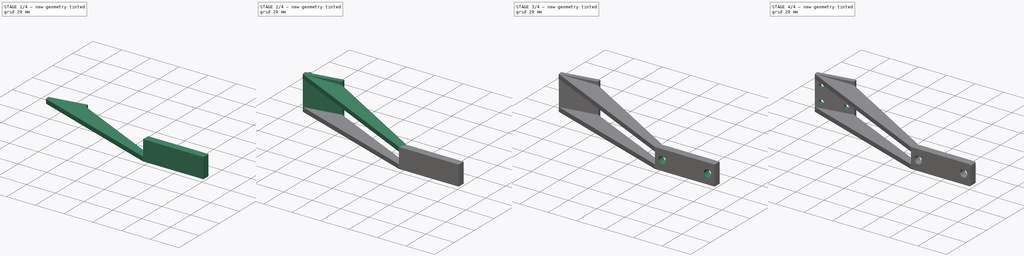
[diagram: build sequence overview — one tinted view per stage of 4, left to right]
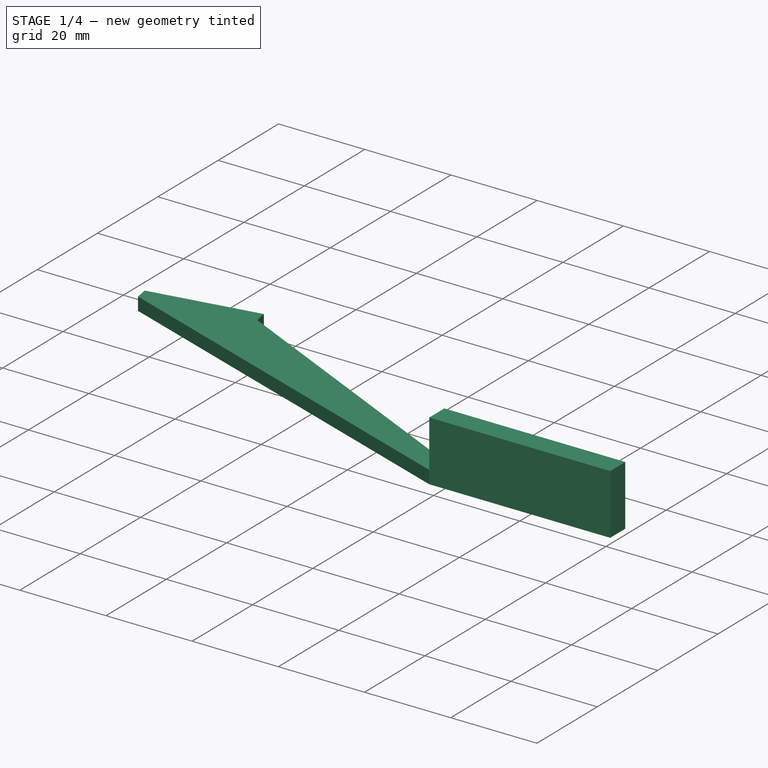
[diagram: stage 1 of 4 — iso view after this stage's code; geometry added in this stage tinted green]
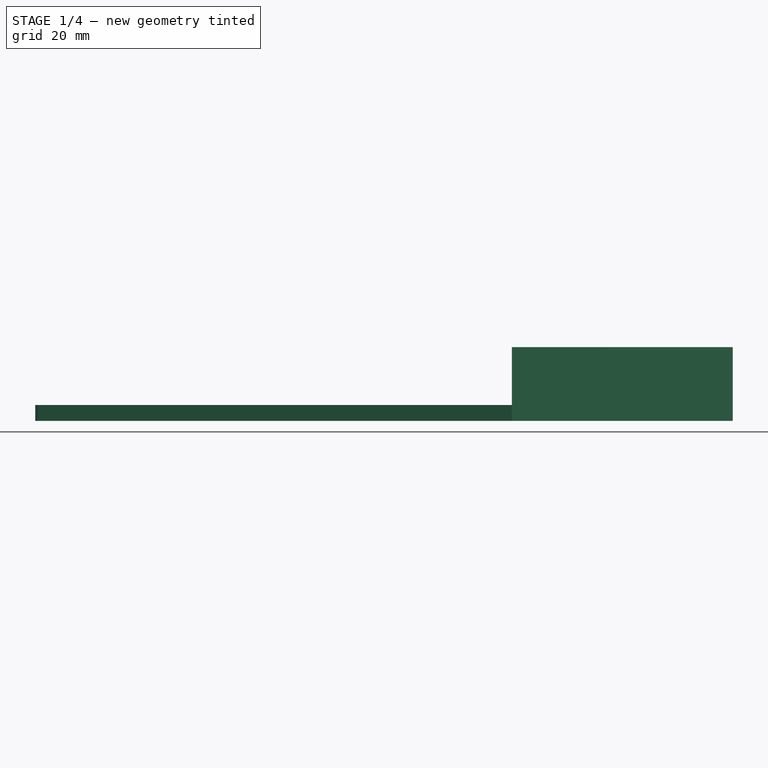
[diagram: stage 1 of 4 — front view after this stage's code; geometry added in this stage tinted green]
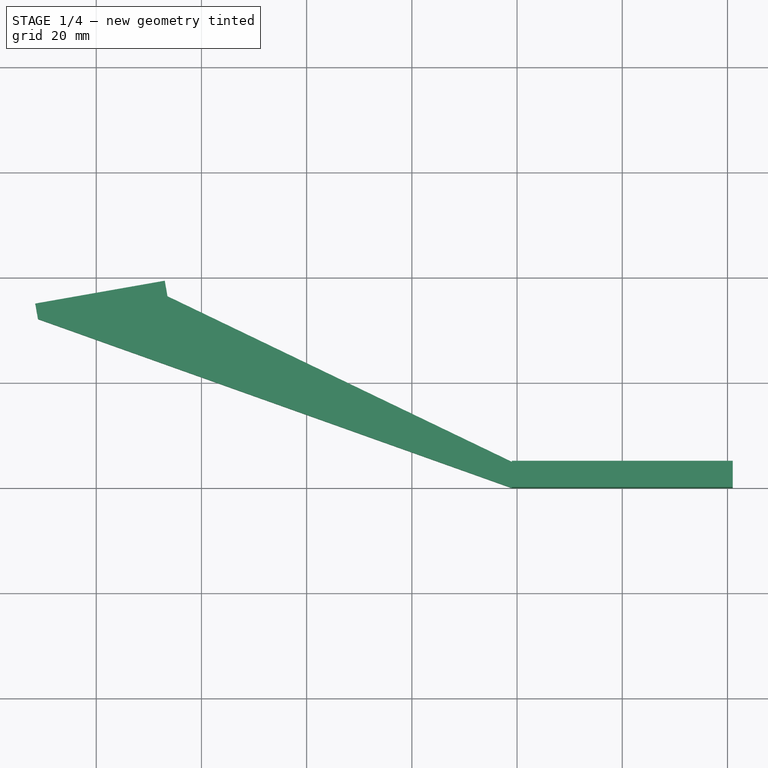
[diagram: stage 1 of 4 — top view after this stage's code; geometry added in this stage tinted green]
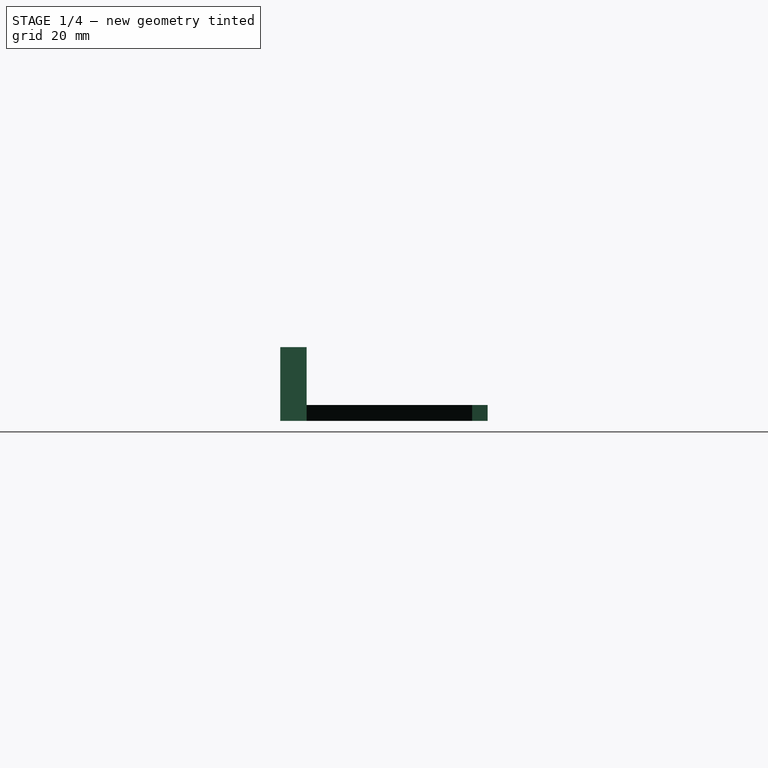
[diagram: stage 1 of 4 — right view after this stage's code; geometry added in this stage tinted green]
FCSTD DOCUMENT  (FreeCAD 0.19R24276 (Git))
Label: Lips_arm_left
License: All rights reserved
LicenseURL: http://en.wikipedia.org/wiki/All_rights_reserved
objects: Sketcher::SketchObject×11, PartDesign::Pocket×6, PartDesign::Pad×5, PartDesign::Fillet×1, PartDesign::Body×1
note: 36 computed .brp shape members not serialized (recipe doc carries the construction recipe); baked Part::Feature solids carry a one-line shape summary decoded from their .brp

FEATURE [Sketcher::SketchObject] Sketch
  FullyConstrained = false
  MapMode = 5
  Support = -> [XY_Plane]
  sketch-geometry (35):
    g0: Circle CenterX=0 CenterY=-54 CenterZ=0 NormalX=0 NormalY=0 NormalZ=1 AngleXU=0 Radius=4
    g1: LineSegment StartX=-57.9645 StartY=-38.8963 StartZ=0 EndX=-1.26483 EndY=-57.7948 EndZ=0
    g2: LineSegment StartX=-45 StartY=0 StartZ=0 EndX=-57.9645 EndY=-38.8963 EndZ=0
    g3: LineSegment StartX=0 StartY=-54 StartZ=0 EndX=-1.26483 EndY=-57.7948 EndZ=0
    g4: LineSegment StartX=1.39757 StartY=-57.7479 StartZ=0 EndX=58.5823 EndY=-36.4241 EndZ=0
    g5: LineSegment StartX=45 StartY=0 StartZ=0 EndX=58.5823 EndY=-36.4241 EndZ=0
    g6: LineSegment StartX=0 StartY=-54 StartZ=0 EndX=1.39757 EndY=-57.7479 EndZ=0
    g7: LineSegment StartX=-45 StartY=0 StartZ=0 EndX=45 EndY=0 EndZ=0
    g8: LineSegment StartX=0 StartY=0 StartZ=0 EndX=0 EndY=-54 EndZ=0
    g9: Circle CenterX=0 CenterY=0 CenterZ=0 NormalX=0 NormalY=0 NormalZ=1 AngleXU=0 Radius=90
    g10: LineSegment StartX=-45 StartY=0 StartZ=0 EndX=-31.8819 EndY=-39.2255 EndZ=0
    g11: Circle CenterX=0 CenterY=54 CenterZ=0 NormalX=0 NormalY=0 NormalZ=1 AngleXU=0 Radius=4
    g12: LineSegment StartX=0 StartY=0 StartZ=0 EndX=0 EndY=54 EndZ=0
    g13: Circle CenterX=0 CenterY=220 CenterZ=0 NormalX=0 NormalY=0 NormalZ=1 AngleXU=0 Radius=20
    g14: LineSegment StartX=45 StartY=0 StartZ=0 EndX=56.689 EndY=42.3716 EndZ=0
    g15: LineSegment StartX=-29.7255 StartY=-48.3086 StartZ=0 EndX=-26.8797 EndY=-39.7704 EndZ=0
    g16: LineSegment StartX=-29.7255 StartY=-48.3086 StartZ=0 EndX=-32.5714 EndY=-56.8468 EndZ=0
    g17: Circle CenterX=-45 CenterY=0 CenterZ=0 NormalX=0 NormalY=0 NormalZ=1 AngleXU=0 Radius=41
    g18: Circle CenterX=45 CenterY=0 CenterZ=0 NormalX=0 NormalY=0 NormalZ=1 AngleXU=0 Radius=41
    g19: LineSegment StartX=0 StartY=0 StartZ=0 EndX=0 EndY=-135 EndZ=0
    g20: LineSegment StartX=0 StartY=-135 StartZ=0 EndX=-86.4517 EndY=-103.534 EndZ=0
    g21: LineSegment StartX=0 StartY=-135 StartZ=0 EndX=86.6358 EndY=-104.045 EndZ=0
    g22: LineSegment StartX=-86.4517 StartY=-103.534 StartZ=0 EndX=-111.072 EndY=-107.875 EndZ=0
    g23: LineSegment StartX=-111.072 StartY=-107.875 StartZ=0 EndX=-111.593 EndY=-104.921 EndZ=0
    g24: LineSegment StartX=-111.593 StartY=-104.921 StartZ=0 EndX=-86.9727 EndY=-100.58 EndZ=0
    g25: LineSegment StartX=-86.9727 StartY=-100.58 StartZ=0 EndX=-86.4517 EndY=-103.534 EndZ=0
    g26: LineSegment StartX=-21 StartY=-135 StartZ=0 EndX=21 EndY=-135 EndZ=0
    g27: LineSegment StartX=21 StartY=-135 StartZ=0 EndX=21 EndY=-140 EndZ=0
    g28: LineSegment StartX=21 StartY=-140 StartZ=0 EndX=-21 EndY=-140 EndZ=0
    g29: LineSegment StartX=-21 StartY=-140 StartZ=0 EndX=-21 EndY=-135 EndZ=0
    g30: LineSegment StartX=0 StartY=-135 StartZ=0 EndX=-72.9805 EndY=-135 EndZ=0
    g31: LineSegment StartX=-21 StartY=-135 StartZ=0 EndX=-86.4517 EndY=-103.534 EndZ=0
    g32: LineSegment StartX=-21 StartY=-140 StartZ=0 EndX=-111.072 EndY=-107.875 EndZ=0
    g33: LineSegment StartX=-110.377 StartY=-111.815 StartZ=0 EndX=-61.9528 EndY=-103.276 EndZ=0
    g34: LineSegment StartX=-111.072 StartY=-107.875 StartZ=0 EndX=-110.377 EndY=-111.815 EndZ=0
  constraints (86):
    c: Diameter(g0) = 8
    c: PointOnObject(g1,g0)
    c: Perpendicular(g1,g2)
    c: Coincident(g3,g0)
    c: Coincident(g3,g1)
    c: Perpendicular(g3,g1)
    c: PointOnObject(g4,g0)
    c: Coincident(g5,g4)
    c: Perpendicular(g5,g4)
    c: Coincident(g6,g0)
    c: Coincident(g6,g4)
    c: Perpendicular(g4,g6)
    c: Distance(g7) = 90
    c: Coincident(g8,g-1)
    c: Coincident(g8,g0)
    c: Perpendicular(g7,g8)
    c: Distance(g8) = 54
    c: Coincident(g9,g-1)
    c: Diameter(g9) = 180
    c: Equal(g0,g11)
    c: Coincident(g12,g-1)
    c: Coincident(g12,g11)
    c: Equal(g12,g8)
    c: Parallel(g12,g8)
    c: PointOnObject(g13,g-2)
    c: Radius(g13) = 20
    c: DistanceY(g-1,g13) = 220
    c: PointOnObject(g15,g1)
    c: Coincident(g16,g15)
    c: Symmetric(g16,g15,g15)
    c: Distance(g16,g15) = 18
    c: Perpendicular(g15,g1)
    c: Distance(g15,g1) = 30
    c: Coincident(g17,g2)
    c: Coincident(g18,g5)
    c: Equal(g17,g18)
    c: Coincident(g19,g-1)
    c: Vertical(g19)
    c: DistanceY(g19,g19) = 135
    c: Coincident(g20,g21)
    c: Coincident(g20,g19)
    c: Distance(g20) = 92
    c: Equal(g20,g21)
    c: Coincident(g22,g20)
    c: Coincident(g24,g23)
    c: Coincident(g25,g24)
    c: Coincident(g25,g20)
    c: Parallel(g23,g25)
    c: Perpendicular(g23,g22)
    c: Distance(g22) = 25
    c: Coincident(g2,g7)
    c: Coincident(g10,g2)
    c: Coincident(g7,g5)
    c: Coincident(g7,g14)
    c: Symmetric(g2,g5,g-1)
    c: Horizontal(g7)
    c: PointOnObject(g2,g17)
    c: Coincident(g1,g2)
    c: Diameter(g17) = 82
    c: Parallel(g22,g24)
    c: Angle(g22,g20) = 2.61799
    c: Coincident(g26,g27)
    c: Coincident(g27,g28)
    c: Coincident(g28,g29)
    c: Coincident(g29,g26)
    c: Horizontal(g26)
    c: Horizontal(g28)
    c: Vertical(g27)
    c: Vertical(g29)
    c: Coincident(g30,g20)
    c: Horizontal(g30)
    c: Angle(g20,g30) = 0.349066
    c: DistanceX(g28,g28) = 42
    c: Symmetric(g26,g26,g20)
    c: DistanceY(g27,g27) = 5
    c: Coincident(g31,g26)
    c: Coincident(g31,g20)
    c: Coincident(g32,g28)
    c: Coincident(g32,g22)
    c: Coincident(g23,g22)
    c: Distance(g23) = 3
    c: Parallel(g22,g33)
    c: Coincident(g34,g23)
    c: Perpendicular(g34,g33)
    c: Coincident(g33,g34)
    c: Distance(g34) = 4
FEATURE [PartDesign::Pad] Pad
  Direction = (1,1,1)
  Length = 3
  Length2 = 100
  Profile = -> Sketch
  Type = 0
FEATURE [Sketcher::SketchObject] Sketch001
  FullyConstrained = false
  MapMode = 5
  Placement = pos=(0,-140,0) rot=(1,0,0;1.5708rad)
  Support = -> [Pad]
  sketch-geometry (3):
    g0: Circle CenterX=-11.143 CenterY=7 CenterZ=0 NormalX=0 NormalY=0 NormalZ=1 AngleXU=0 Radius=2.6
    g1: Circle CenterX=11.143 CenterY=7 CenterZ=0 NormalX=0 NormalY=0 NormalZ=1 AngleXU=0 Radius=2.6
    g2: LineSegment StartX=0 StartY=0 StartZ=0 EndX=0 EndY=7 EndZ=0
  constraints (7):
    c: Diameter(g0) = 5.2
    c: Equal(g0,g1)
    c: Horizontal(g0,g1)
    c: DistanceY(g-1,g1) = 7
    c: Coincident(g2,g-1)
    c: PointOnObject(g2,g-2)
    c: Symmetric(g0,g1,g2)
FEATURE [PartDesign::Pocket] Pocket
  BaseFeature = -> Pad
  Length = 5
  Length2 = 100
  Profile = -> Sketch001
  Type = 1
FEATURE [Sketcher::SketchObject] Sketch002
  FullyConstrained = true
  MapMode = 5
  Placement = pos=(0,-140,0) rot=(1,0,0;1.5708rad)
  Support = -> [Pad]
  sketch-geometry (4):
    g0: LineSegment StartX=-21 StartY=0 StartZ=0 EndX=21 EndY=0 EndZ=0
    g1: LineSegment StartX=21 StartY=0 StartZ=0 EndX=21 EndY=14 EndZ=0
    g2: LineSegment StartX=21 StartY=14 StartZ=0 EndX=-21 EndY=14 EndZ=0
    g3: LineSegment StartX=-21 StartY=14 StartZ=0 EndX=-21 EndY=0 EndZ=0
  constraints (11):
    c: Coincident(g0,g1)
    c: Coincident(g1,g2)
    c: Coincident(g2,g3)
    c: Coincident(g3,g0)
    c: Horizontal(g0)
    c: Horizontal(g2)
    c: Vertical(g1)
    c: Vertical(g3)
    c: DistanceX(g0,g0) = 42
    c: Symmetric(g0,g0,g-1)
    c: DistanceY(g1,g1) = 14
FEATURE [PartDesign::Pad] Pad001
  BaseFeature = -> Pocket
  Direction = (1,1,1)
  Length = 5
  Length2 = 100
  Profile = -> Sketch002
  Reversed = true
  Type = 0
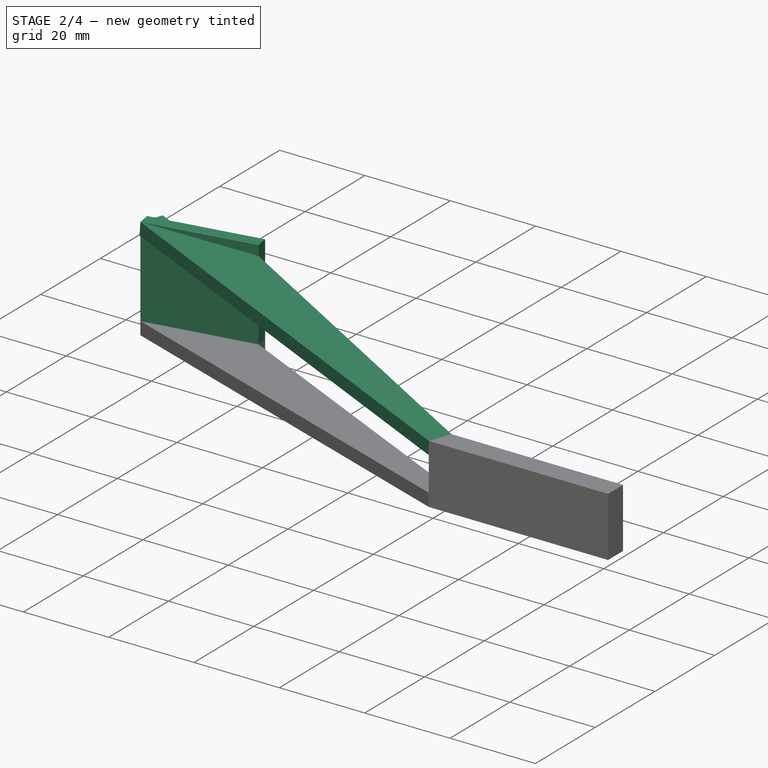
[diagram: stage 2 of 4 — iso view after this stage's code; geometry added in this stage tinted green]
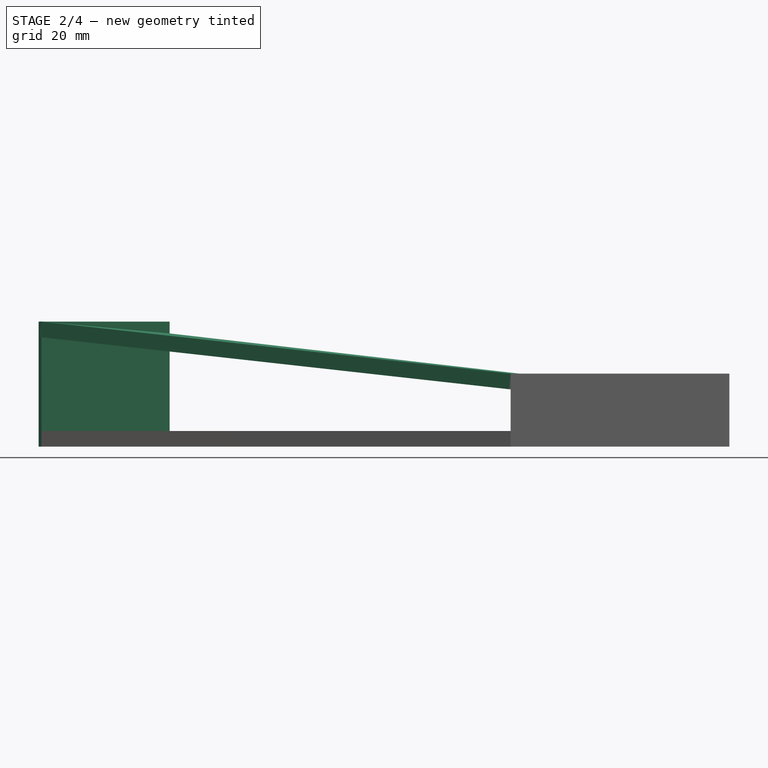
[diagram: stage 2 of 4 — front view after this stage's code; geometry added in this stage tinted green]
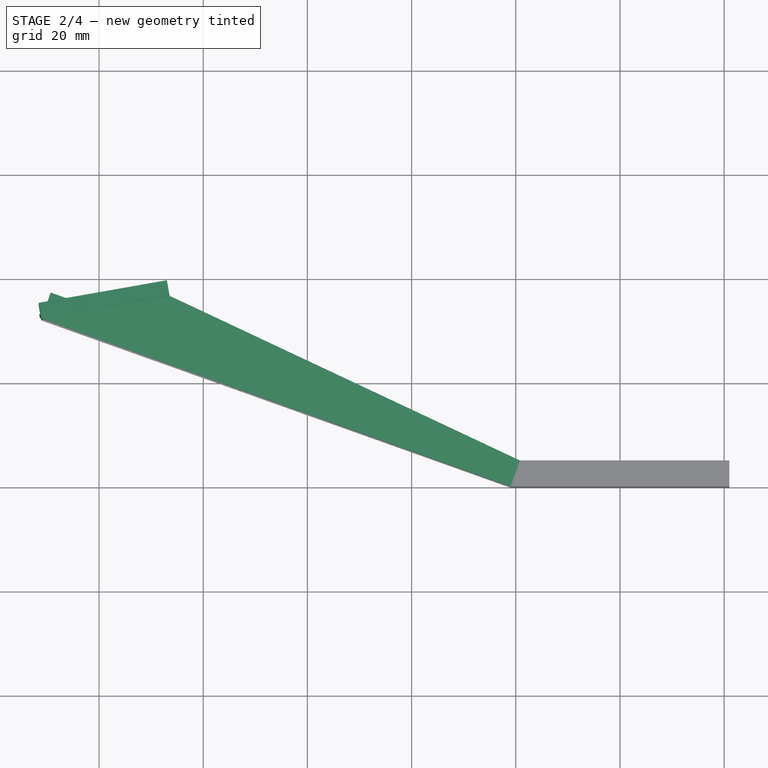
[diagram: stage 2 of 4 — top view after this stage's code; geometry added in this stage tinted green]
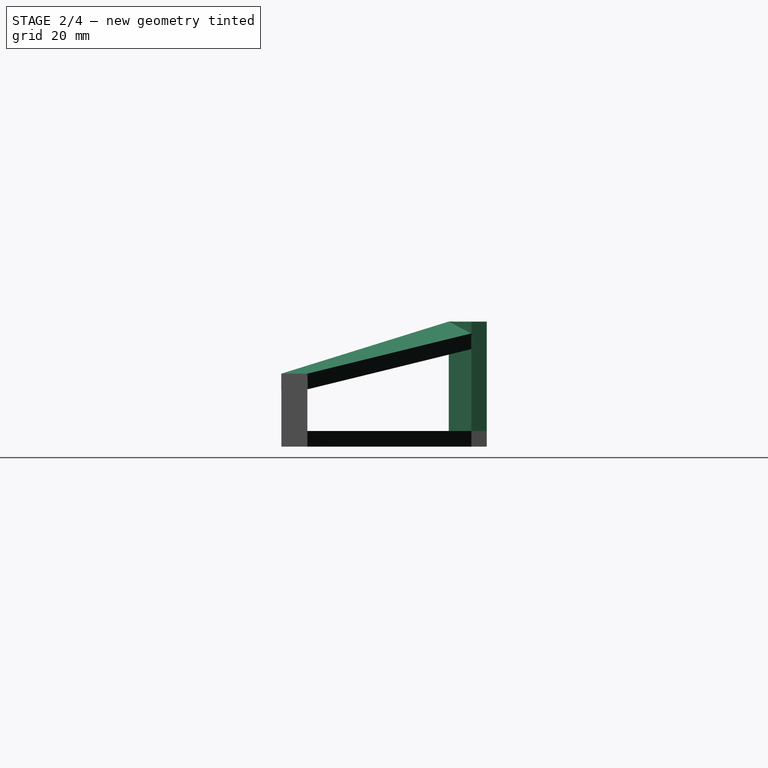
[diagram: stage 2 of 4 — right view after this stage's code; geometry added in this stage tinted green]
FEATURE [Sketcher::SketchObject] Sketch003
  FullyConstrained = true
  MapMode = 5
  Placement = pos=(14.5776,-82.6737,0) rot=(-0.061746,0.705758,0.705758;3.26493rad)
  Support = -> [Pad001]
  sketch-geometry (4):
    g0: LineSegment StartX=103.12 StartY=0 StartZ=0 EndX=128.12 EndY=0 EndZ=0
    g1: LineSegment StartX=128.12 StartY=0 StartZ=0 EndX=128.12 EndY=24 EndZ=0
    g2: LineSegment StartX=128.12 StartY=24 StartZ=0 EndX=103.12 EndY=24 EndZ=0
    g3: LineSegment StartX=103.12 StartY=24 StartZ=0 EndX=103.12 EndY=0 EndZ=0
  constraints (12):
    c: Coincident(g0,g1)
    c: Coincident(g1,g2)
    c: Coincident(g2,g3)
    c: Coincident(g3,g0)
    c: Horizontal(g0)
    c: Horizontal(g2)
    c: Vertical(g1)
    c: Vertical(g3)
    c: PointOnObject(g0,g-1)
    c: DistanceY(g1,g1) = 24
    c: DistanceX(g-1,g0) = 103.12
    c: DistanceX(g0,g0) = 25
FEATURE [PartDesign::Pad] Pad002
  BaseFeature = -> Pad001
  Direction = (1,1,1)
  Length = 3
  Length2 = 100
  Profile = -> Sketch003
  Reversed = true
  Type = 0
FEATURE [Sketcher::SketchObject] Sketch004
  FullyConstrained = true
  MapMode = 5
  Placement = pos=(-46.6669,-130.846,0) rot=(0.971354,-0.168036,-0.168036;1.59986rad)
  Support = -> [Pad002]
  sketch-geometry (4):
    g0: LineSegment StartX=27.29 StartY=14 StartZ=0 EndX=-68.35 EndY=24 EndZ=0
    g1: LineSegment StartX=-68.35 StartY=24 StartZ=0 EndX=-68.35 EndY=21 EndZ=0
    g2: LineSegment StartX=-68.35 StartY=21 StartZ=0 EndX=27.29 EndY=11 EndZ=0
    g3: LineSegment StartX=27.29 StartY=14 StartZ=0 EndX=27.29 EndY=11 EndZ=0
  constraints (12):
    c: Coincident(g1,g0)
    c: Vertical(g1)
    c: Coincident(g2,g1)
    c: Coincident(g3,g0)
    c: Coincident(g3,g2)
    c: DistanceY(g-1,g2) = 11
    c: DistanceY(g2,g0) = 3
    c: DistanceY(g1,g0) = 3
    c: DistanceY(g-1,g0) = 24
    c: DistanceX(g1,g-1) = 68.35
    c: DistanceX(g-1,g2) = 27.29
    c: Vertical(g3)
FEATURE [PartDesign::Pad] Pad003
  BaseFeature = -> Pad002
  Direction = (1,1,1)
  Length = 5.25
  Length2 = 100
  Profile = -> Sketch004
  Reversed = true
  Type = 0
FEATURE [Sketcher::SketchObject] Sketch005
  FullyConstrained = false
  MapMode = 5
  Placement = pos=(1.64182,-0.585563,16.6712) rot=(0.336695,0.941469,0.016529;0.104194rad)
  Support = -> [Pad003]
  sketch-geometry (6):
    g0: LineSegment StartX=-88.5193 StartY=-102.708 StartZ=0 EndX=-20.9512 EndY=-134.433 EndZ=0
    g1: LineSegment StartX=-20.9512 StartY=-134.433 StartZ=0 EndX=-22.7374 EndY=-139.437 EndZ=0
    g2: LineSegment StartX=-113.252 StartY=-106.973 StartZ=0 EndX=-22.7374 EndY=-139.437 EndZ=0
    g3: LineSegment StartX=-113.252 StartY=-106.973 StartZ=0 EndX=-113.372 EndY=-106.249 EndZ=0
    g4: LineSegment StartX=-113.372 StartY=-106.249 StartZ=0 EndX=-88.617 EndY=-102.17 EndZ=0
    g5: LineSegment StartX=-88.617 StartY=-102.17 StartZ=0 EndX=-88.5193 EndY=-102.708 EndZ=0
  constraints (6):
    c: Coincident(g1,g0)
    c: Coincident(g2,g1)
    c: Coincident(g3,g2)
    c: Coincident(g4,g3)
    c: Coincident(g5,g4)
    c: Coincident(g5,g0)
FEATURE [PartDesign::Pad] Pad004
  BaseFeature = -> Pad003
  Direction = (1,1,1)
  Length = 3
  Length2 = 100
  Profile = -> Sketch005
  Reversed = true
  Type = 0
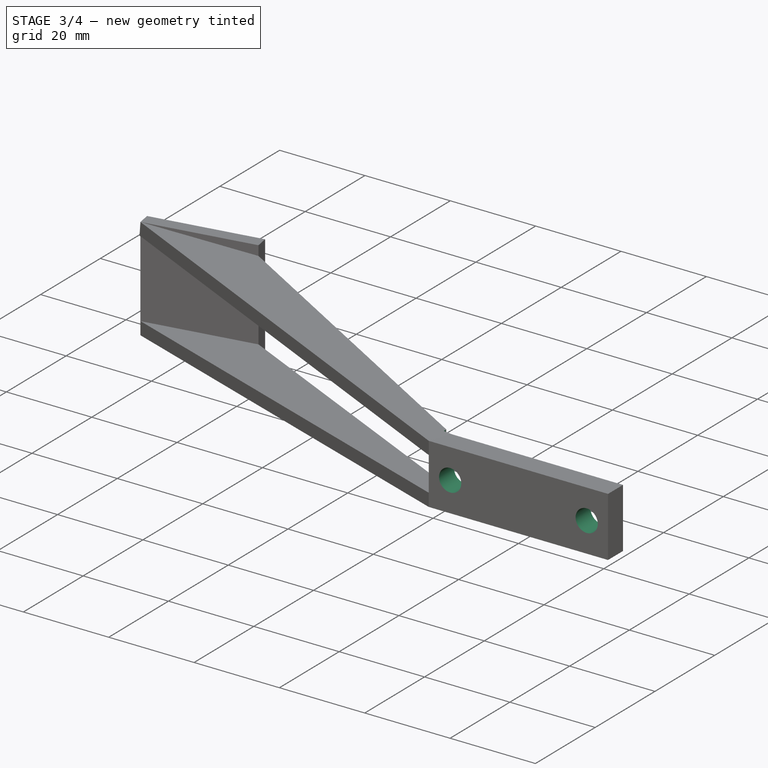
[diagram: stage 3 of 4 — iso view after this stage's code; geometry added in this stage tinted green]
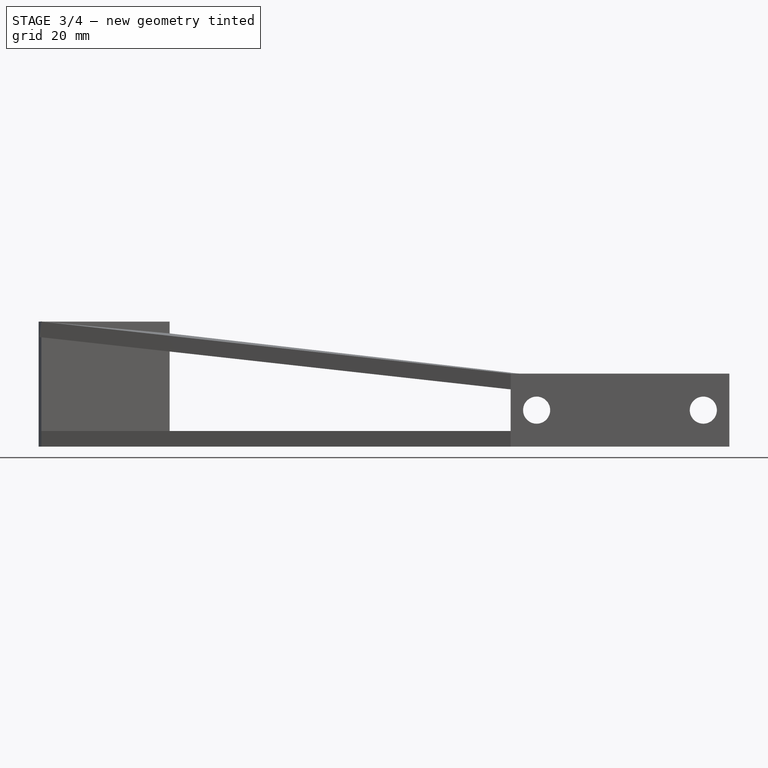
[diagram: stage 3 of 4 — front view after this stage's code; geometry added in this stage tinted green]
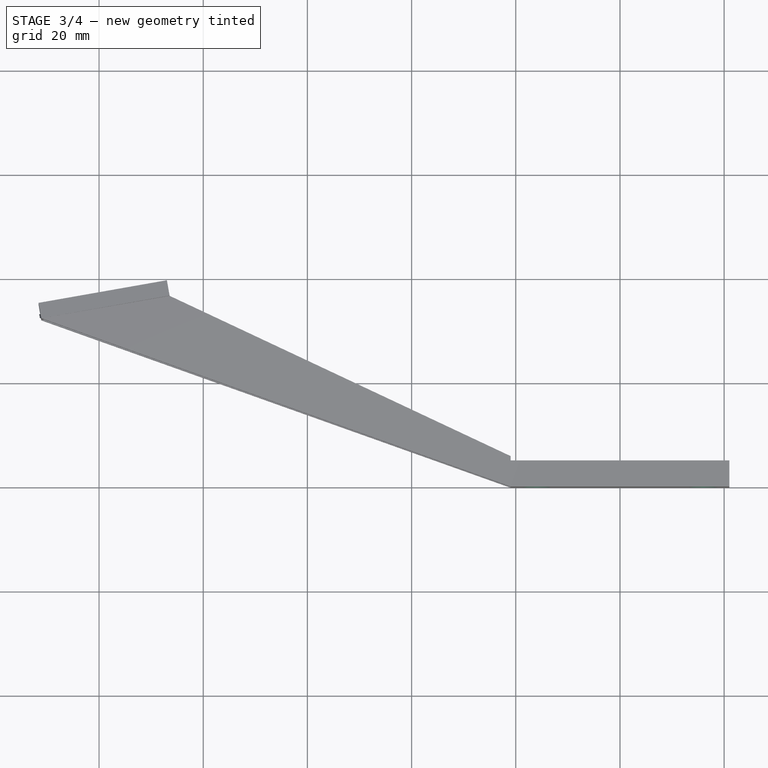
[diagram: stage 3 of 4 — top view after this stage's code; geometry added in this stage tinted green]
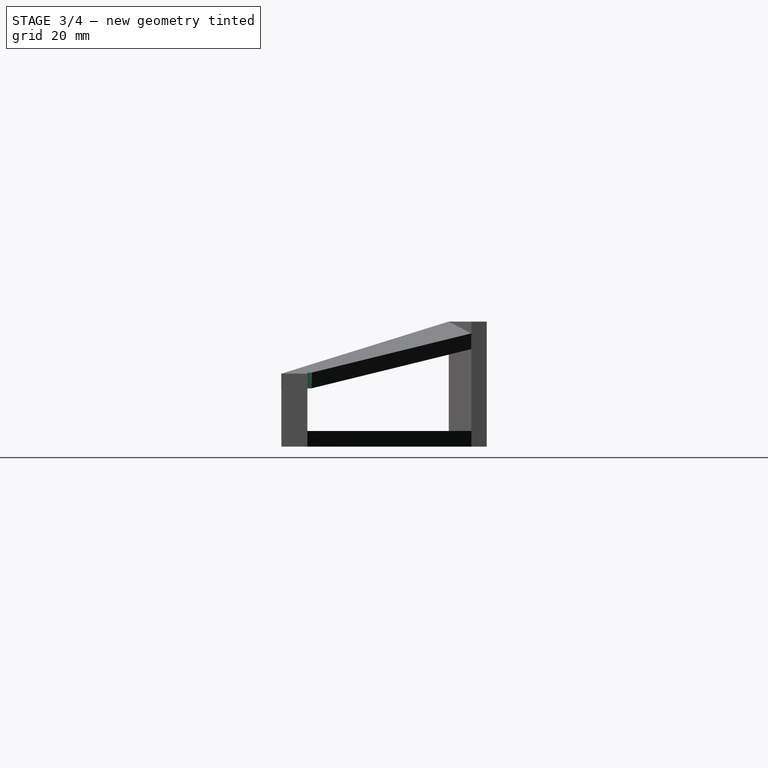
[diagram: stage 3 of 4 — right view after this stage's code; geometry added in this stage tinted green]
FEATURE [Sketcher::SketchObject] Sketch006
  FullyConstrained = true
  MapMode = 5
  Placement = pos=(0,-140,0) rot=(1,0,0;1.5708rad)
  Support = -> [Pad004]
  sketch-geometry (3):
    g0: Circle CenterX=-16 CenterY=7 CenterZ=0 NormalX=0 NormalY=0 NormalZ=1 AngleXU=0 Radius=2.6
    g1: Circle CenterX=16 CenterY=7 CenterZ=0 NormalX=0 NormalY=0 NormalZ=1 AngleXU=0 Radius=2.6
    g2: LineSegment StartX=0 StartY=0 StartZ=0 EndX=0 EndY=7 EndZ=0
  constraints (8):
    c: Horizontal(g0,g1)
    c: Coincident(g2,g-1)
    c: PointOnObject(g2,g-2)
    c: Symmetric(g0,g1,g2)
    c: Radius(g0) = 2.6
    c: Equal(g0,g1)
    c: DistanceX(g0,g1) = 32
    c: DistanceY(g-1,g1) = 7
FEATURE [PartDesign::Pocket] Pocket001
  BaseFeature = -> Pad004
  Length = 5
  Length2 = 100
  Profile = -> Sketch006
  Type = 1
FEATURE [Sketcher::SketchObject] Sketch007
  FullyConstrained = false
  MapMode = 5
  Placement = pos=(0,0,0) rot=(1,0,0;3.14159rad)
  Support = -> [Pocket001]
  sketch-geometry (4):
    g0: LineSegment StartX=-21 StartY=135 StartZ=0 EndX=-10.954 EndY=135 EndZ=0
    g1: LineSegment StartX=-10.954 StartY=135 StartZ=0 EndX=-10.954 EndY=128.155 EndZ=0
    g2: LineSegment StartX=-10.954 StartY=128.155 StartZ=0 EndX=-21 EndY=128.155 EndZ=0
    g3: LineSegment StartX=-21 StartY=128.155 StartZ=0 EndX=-21 EndY=135 EndZ=0
  constraints (10):
    c: Coincident(g0,g1)
    c: Coincident(g1,g2)
    c: Coincident(g2,g3)
    c: Coincident(g3,g0)
    c: Horizontal(g0)
    c: Horizontal(g2)
    c: Vertical(g1)
    c: Vertical(g3)
    c: DistanceY(g-1,g0) = 135
    c: DistanceX(g0,g-1) = 21
FEATURE [PartDesign::Pocket] Pocket002
  BaseFeature = -> Pocket001
  Length = 5
  Length2 = 100
  Profile = -> Sketch007
  Type = 1
FEATURE [Sketcher::SketchObject] Sketch008
  FullyConstrained = false
  MapMode = 5
  Placement = pos=(0,0,24) rot=(0,0,1;0rad)
  Support = -> [Pocket002]
  sketch-geometry (4):
    g0: LineSegment StartX=-111.596 StartY=-104.921 StartZ=0 EndX=-104.281 EndY=-103.632 EndZ=0
    g1: LineSegment StartX=-111.596 StartY=-104.921 StartZ=0 EndX=-111.596 EndY=-102.358 EndZ=0
    g2: LineSegment StartX=-111.596 StartY=-102.358 StartZ=0 EndX=-103.238 EndY=-101.954 EndZ=0
    g3: LineSegment StartX=-103.238 StartY=-101.954 StartZ=0 EndX=-104.281 EndY=-103.632 EndZ=0
  constraints (5):
    c: Coincident(g1,g0)
    c: Vertical(g1)
    c: Coincident(g2,g1)
    c: Coincident(g3,g2)
    c: Coincident(g3,g0)
FEATURE [PartDesign::Pocket] Pocket003
  BaseFeature = -> Pocket002
  Length = 5
  Length2 = 100
  Profile = -> Sketch008
  Type = 1
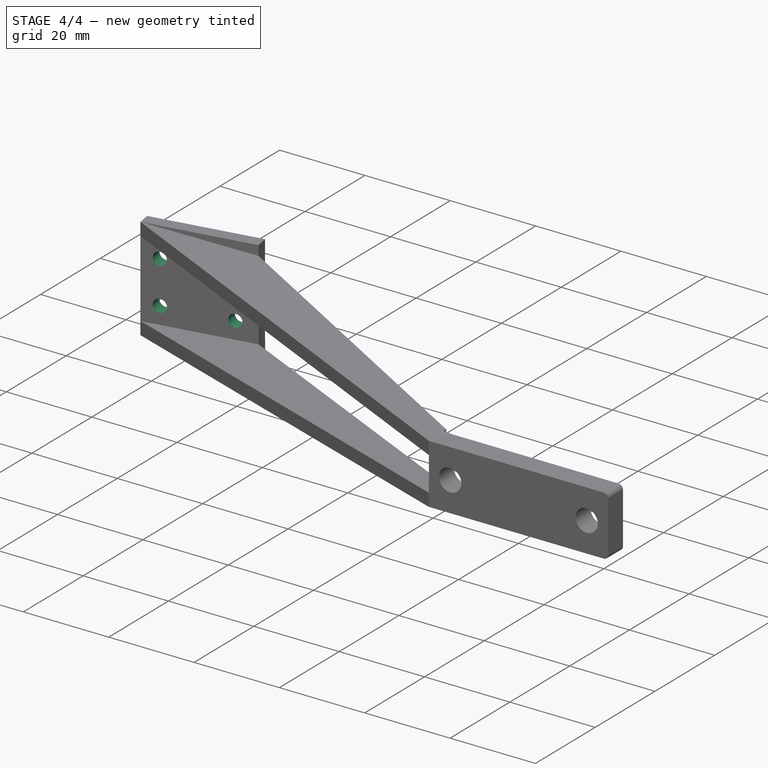
[diagram: stage 4 of 4 — iso view after this stage's code; geometry added in this stage tinted green]
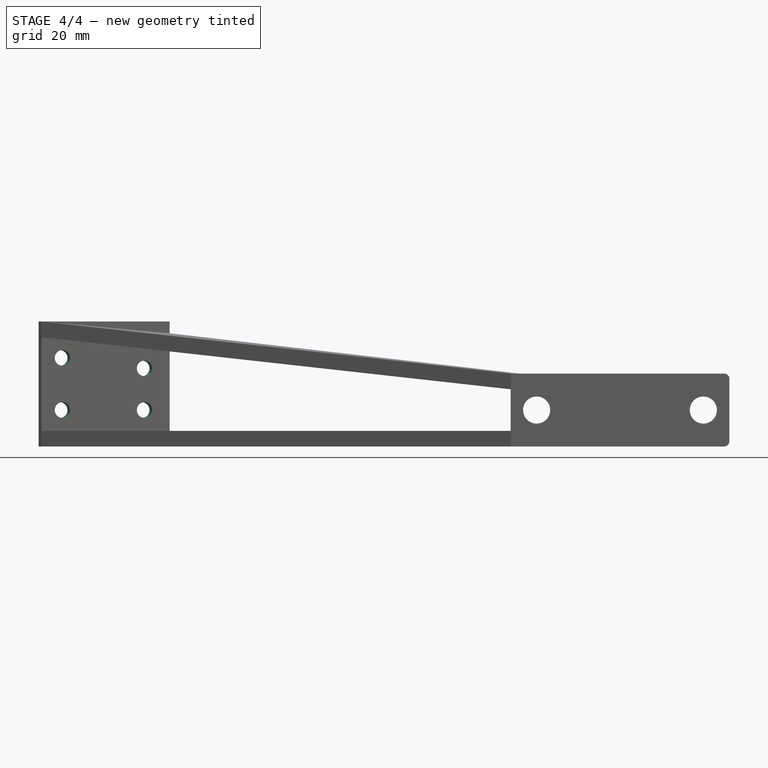
[diagram: stage 4 of 4 — front view after this stage's code; geometry added in this stage tinted green]
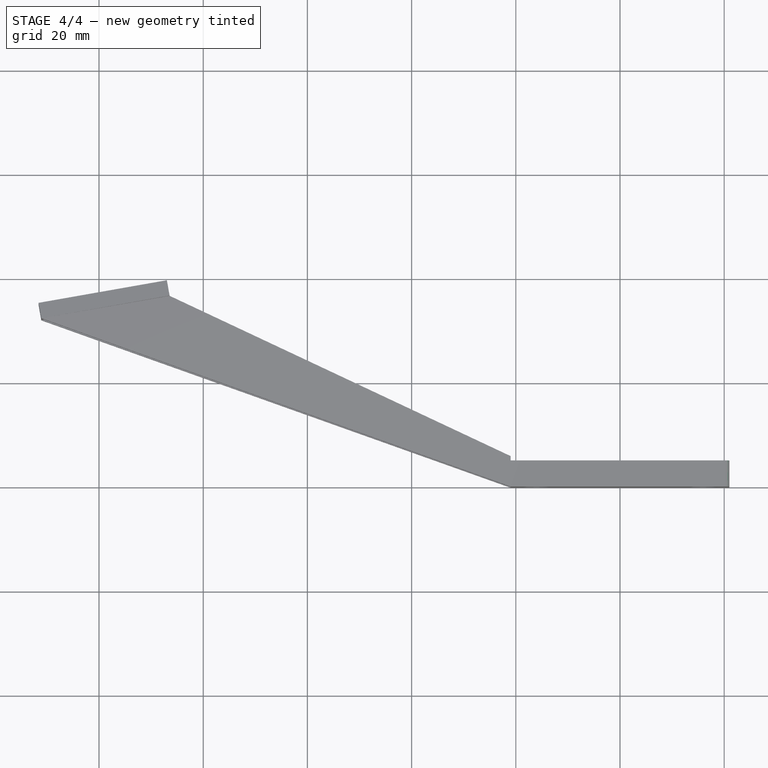
[diagram: stage 4 of 4 — top view after this stage's code; geometry added in this stage tinted green]
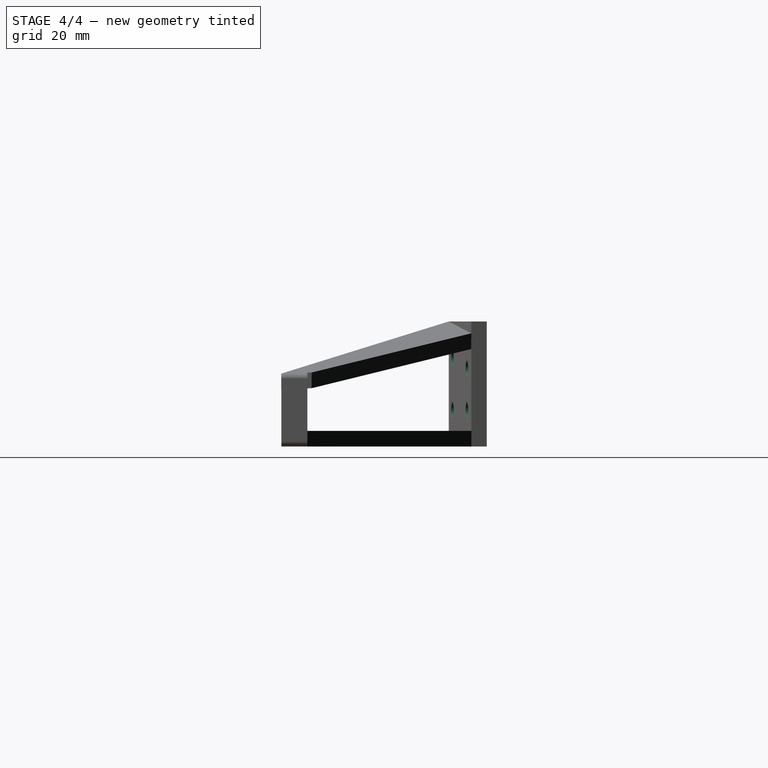
[diagram: stage 4 of 4 — right view after this stage's code; geometry added in this stage tinted green]
FEATURE [Sketcher::SketchObject] Sketch009
  FullyConstrained = true
  MapMode = 5
  Placement = pos=(15.0985,-85.6281,0) rot=(0.992433,0.086827,0.086827;1.57839rad)
  Support = -> [Pocket003]
  sketch-geometry (4):
    g0: Circle CenterX=-124 CenterY=17 CenterZ=0 NormalX=0 NormalY=0 NormalZ=1 AngleXU=0 Radius=1.5
    g1: Circle CenterX=-108 CenterY=15 CenterZ=0 NormalX=0 NormalY=0 NormalZ=1 AngleXU=0 Radius=1.5
    g2: Circle CenterX=-124 CenterY=7 CenterZ=0 NormalX=0 NormalY=0 NormalZ=1 AngleXU=0 Radius=1.5
    g3: Circle CenterX=-108 CenterY=7 CenterZ=0 NormalX=0 NormalY=0 NormalZ=1 AngleXU=0 Radius=1.5
  constraints (12):
    c: Horizontal(g2,g3)
    c: Diameter(g0) = 3
    c: Equal(g0,g1)
    c: Equal(g0,g3)
    c: Equal(g0,g2)
    c: Vertical(g2,g0)
    c: DistanceX(g2,g-1) = 124
    c: DistanceX(g2,g3) = 16
    c: Vertical(g1,g3)
    c: DistanceY(g-1,g2) = 7
    c: DistanceY(g2,g0) = 10
    c: DistanceY(g3,g1) = 8
FEATURE [Sketcher::SketchObject] Sketch010
  FullyConstrained = false
  MapMode = 5
  Placement = pos=(14.5776,-82.6737,0) rot=(-0.061746,0.705758,0.705758;3.26493rad)
  Support = -> [Pocket003]
  sketch-geometry (6):
    g0: LineSegment StartX=127.009 StartY=24 StartZ=0 EndX=128.12 EndY=24 EndZ=0
    g1: LineSegment StartX=128.12 StartY=24 StartZ=0 EndX=128.12 EndY=20.6258 EndZ=0
    g2: LineSegment StartX=128.12 StartY=20.6258 StartZ=0 EndX=128.83 EndY=20.6258 EndZ=0
    g3: LineSegment StartX=128.83 StartY=20.6258 StartZ=0 EndX=128.83 EndY=24.4074 EndZ=0
    g4: LineSegment StartX=128.83 StartY=24.4074 StartZ=0 EndX=126.853 EndY=24.4074 EndZ=0
    g5: LineSegment StartX=126.853 StartY=24.4074 StartZ=0 EndX=127.009 EndY=24 EndZ=0
  constraints (11):
    c: Horizontal(g0)
    c: Coincident(g1,g0)
    c: Vertical(g1)
    c: Coincident(g2,g1)
    c: Horizontal(g2)
    c: Coincident(g3,g2)
    c: Vertical(g3)
    c: Coincident(g4,g3)
    c: Horizontal(g4)
    c: Coincident(g5,g4)
    c: Coincident(g5,g0)
FEATURE [PartDesign::Pocket] Pocket004
  BaseFeature = -> Pocket003
  Length = 5
  Length2 = 100
  Profile = -> Sketch010
  Type = 1
FEATURE [PartDesign::Pocket] Pocket005
  BaseFeature = -> Pocket004
  Length = 5
  Length2 = 100
  Profile = -> Sketch009
  Type = 1
FEATURE [PartDesign::Fillet] Fillet
  Base = -> Pocket005 [Edge152,Edge82]
  BaseFeature = -> Pocket005
  Radius = 1
  SupportTransform = false
FEATURE [PartDesign::Body] Body
  Group = -> [Sketch,Pad,Sketch001,Pocket,Sketch002,Pad001,Sketch003,Pad002,Sketch004,Pad003,Sketch005,Pad004,Sketch006,Pocket001,Sketch007,Pocket002,Sketch008,Pocket003,Sketch009,Sketch010,Pocket004,Pocket005,Fillet]
  Origin = -> Origin
  Tip = -> Fillet
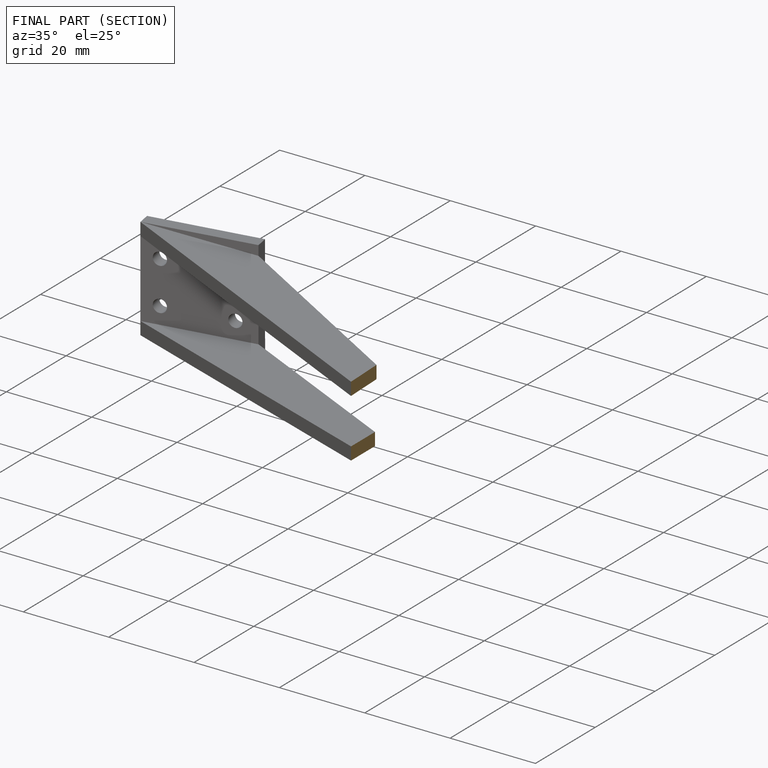
[diagram: finished part — half-section view (interior)]
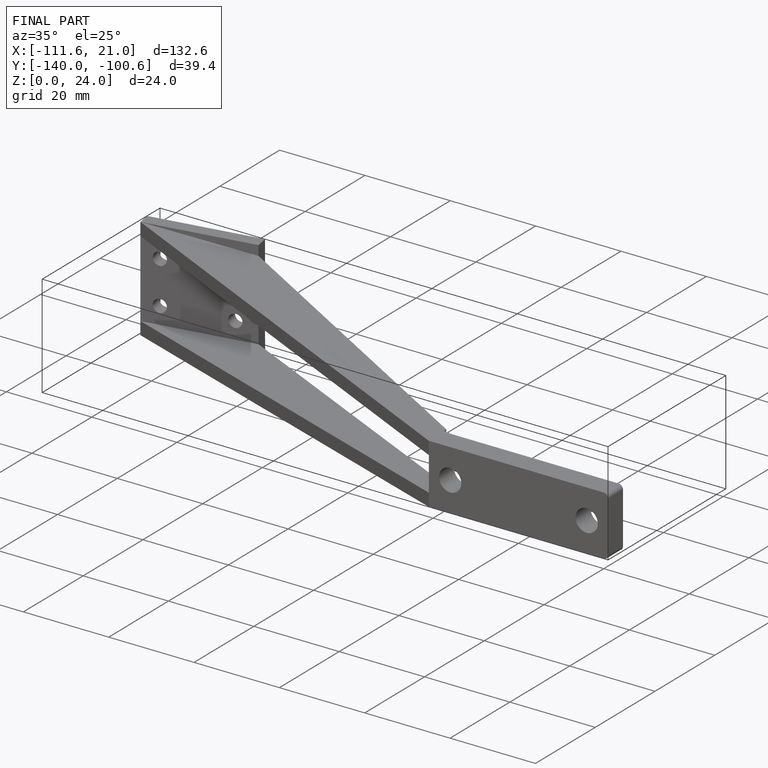
[diagram: finished part — iso view with bounding-box wireframe]
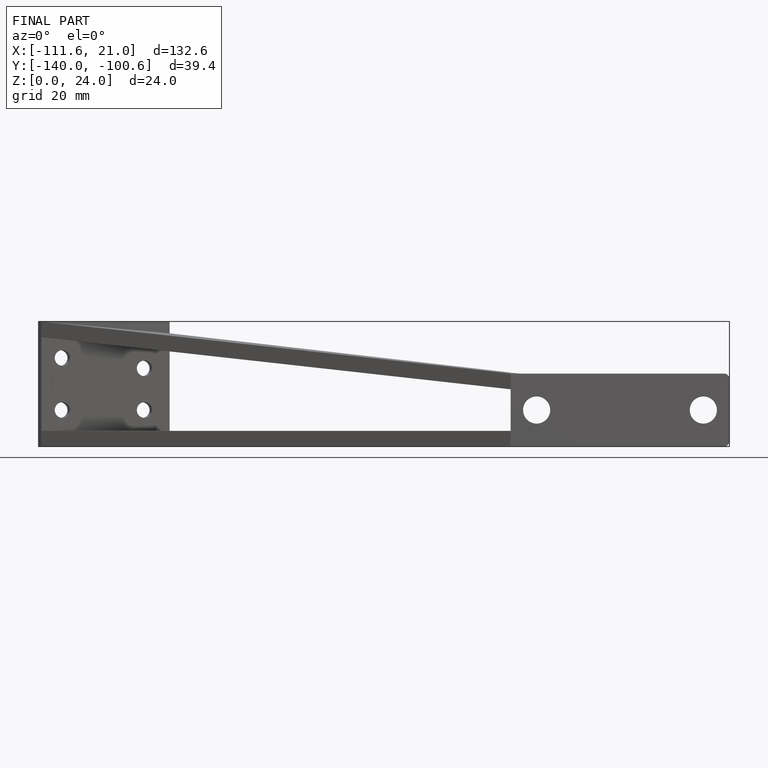
[diagram: finished part — front view with bounding-box wireframe]
